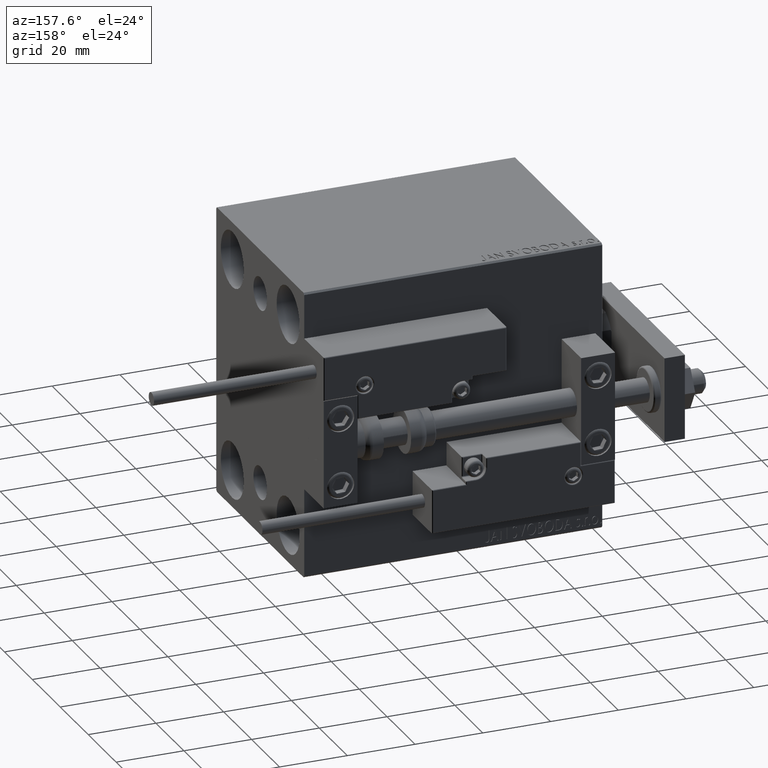
[diagram: clean part render]
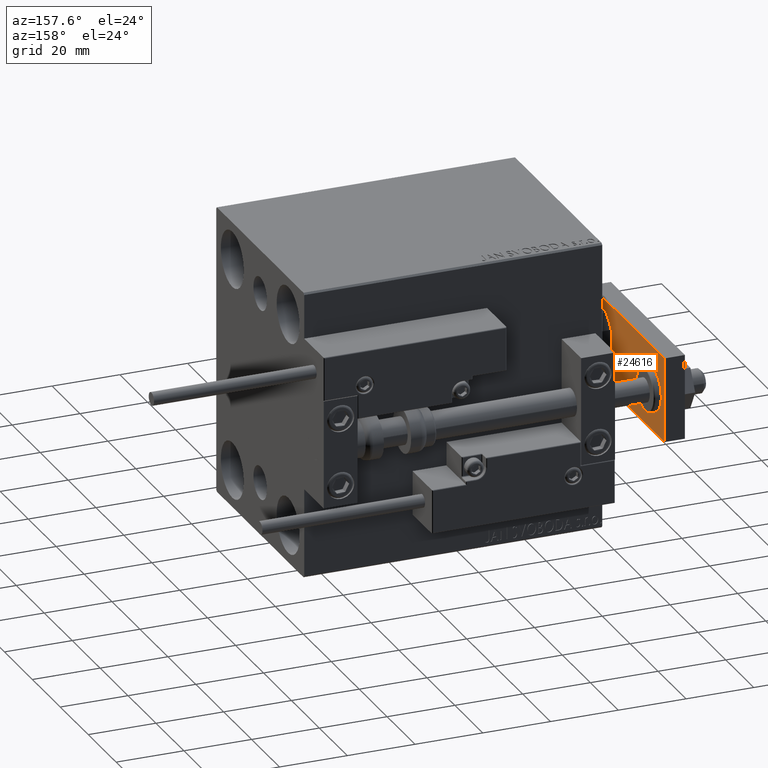
[diagram: same view with one face highlighted and labeled with its STEP entity id]
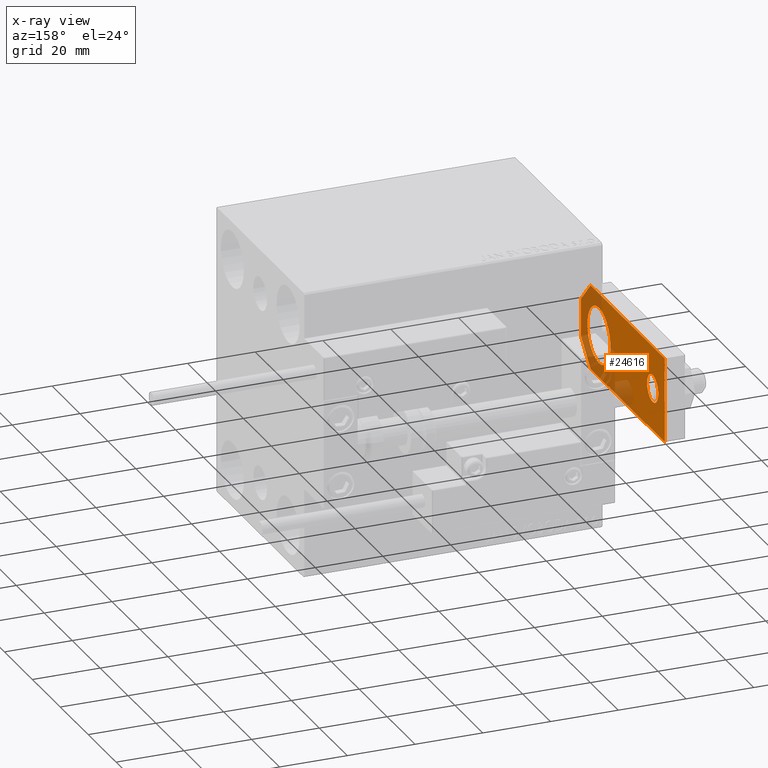
[diagram: x-ray of the same camera — body ghosted, the highlighted face saturated]
A machine part, auxiliary view. The second image highlights one B-rep face of the part: STEP entity #24616.
The next image is the same camera in x-ray: the body ghosted, the highlighted face saturated — about 29% of this face is hidden behind the body in this view.
In plain terms, the highlighted planar face has unit normal (-1, 0, 0).
Its self-contained STEP definition (entity closure, byte-faithful):
#76 = CARTESIAN_POINT ( 'NONE',  ( 12.50000000000000355, 60.00000000000000000, 0.000000000000000000 ) ) ;
#257 = EDGE_LOOP ( 'NONE', ( #16650, #29109 ) ) ;
#455 = DIRECTION ( 'NONE',  ( 1.000000000000000000, 0.000000000000000000, 0.000000000000000000 ) ) ;
#927 = DIRECTION ( 'NONE',  ( -0.7071067811865465735, 0.7071067811865485719, -0.000000000000000000 ) ) ;
#1208 = FACE_OUTER_BOUND ( 'NONE', #18772, .T. ) ;
#1273 = VERTEX_POINT ( 'NONE', #16769 ) ;
#1438 = CARTESIAN_POINT ( 'NONE',  ( -12.49999999999999822, 60.00000000000000000, 0.000000000000000000 ) ) ;
#2416 = VERTEX_POINT ( 'NONE', #12184 ) ;
#2579 = ORIENTED_EDGE ( 'NONE', *, *, #46075, .F. ) ;
#2610 = LINE ( 'NONE', #37791, #17291 ) ;
#2993 = CARTESIAN_POINT ( 'NONE',  ( -12.50000000000000355, 7.000000000000013323, 0.000000000000000000 ) ) ;
#3582 = EDGE_CURVE ( 'NONE', #30426, #26412, #40472, .T. ) ;
#3798 = CARTESIAN_POINT ( 'NONE',  ( 8.250000000000000000, 13.00000000000000000, 0.000000000000000000 ) ) ;
#5816 = ORIENTED_EDGE ( 'NONE', *, *, #48107, .F. ) ;
#6535 = DIRECTION ( 'NONE',  ( -0.7071067811865486830, -0.7071067811865464625, -0.000000000000000000 ) ) ;
#6827 = AXIS2_PLACEMENT_3D ( 'NONE', #25024, #43983, #16653 ) ;
#6858 = AXIS2_PLACEMENT_3D ( 'NONE', #8102, #23548, #39484 ) ;
#7784 = DIRECTION ( 'NONE',  ( -1.000000000000000000, 0.000000000000000000, 0.000000000000000000 ) ) ;
#8102 = CARTESIAN_POINT ( 'NONE',  ( -1.432611055310774642E-16, 51.50000000000000000, 0.000000000000000000 ) ) ;
#8280 = LINE ( 'NONE', #12320, #23774 ) ;
#8633 = DIRECTION ( 'NONE',  ( 1.000000000000000000, 0.000000000000000000, 0.000000000000000000 ) ) ;
#9507 = VERTEX_POINT ( 'NONE', #3798 ) ;
#9515 = ORIENTED_EDGE ( 'NONE', *, *, #26180, .F. ) ;
#9586 = CARTESIAN_POINT ( 'NONE',  ( 12.50000000000000355, 7.000000000000006217, 0.000000000000000000 ) ) ;
#10103 = ORIENTED_EDGE ( 'NONE', *, *, #46718, .T. ) ;
#11088 = LINE ( 'NONE', #42223, #49913 ) ;
#12184 = CARTESIAN_POINT ( 'NONE',  ( -5.500000000000010658, 4.814824860968089633E-32, 0.000000000000000000 ) ) ;
#12306 = VERTEX_POINT ( 'NONE', #46501 ) ;
#12320 = CARTESIAN_POINT ( 'NONE',  ( -5.500000000000010658, 4.814824860968089633E-32, 0.000000000000000000 ) ) ;
#13541 = CIRCLE ( 'NONE', #17547, 8.250000000000000000 ) ;
#14339 = CIRCLE ( 'NONE', #17581, 4.000000000000000888 ) ;
#14388 = DIRECTION ( 'NONE',  ( 1.000000000000000000, 0.000000000000000000, 0.000000000000000000 ) ) ;
#14700 = CARTESIAN_POINT ( 'NONE',  ( 5.499999999999976907, 4.814824860968089633E-32, 0.000000000000000000 ) ) ;
#15833 = VERTEX_POINT ( 'NONE', #76 ) ;
#15855 = CARTESIAN_POINT ( 'NONE',  ( -4.000000000000000888, 51.50000000000000000, 0.000000000000000000 ) ) ;
#16223 = DIRECTION ( 'NONE',  ( 0.000000000000000000, 0.000000000000000000, 1.000000000000000000 ) ) ;
#16650 = ORIENTED_EDGE ( 'NONE', *, *, #28523, .T. ) ;
#16653 = DIRECTION ( 'NONE',  ( 1.000000000000000000, 0.000000000000000000, 0.000000000000000000 ) ) ;
#16769 = CARTESIAN_POINT ( 'NONE',  ( -12.49999999999999822, 60.00000000000000000, 0.000000000000000000 ) ) ;
#16876 = DIRECTION ( 'NONE',  ( -8.673617379884035472E-17, -1.000000000000000000, 0.000000000000000000 ) ) ;
#17291 = VECTOR ( 'NONE', #29705, 1000.000000000000000 ) ;
#17547 = AXIS2_PLACEMENT_3D ( 'NONE', #19696, #35147, #455 ) ;
#17581 = AXIS2_PLACEMENT_3D ( 'NONE', #47860, #16223, #8633 ) ;
#18681 = CARTESIAN_POINT ( 'NONE',  ( 12.50000000000000355, 60.00000000000000000, 0.000000000000000000 ) ) ;
#18772 = EDGE_LOOP ( 'NONE', ( #2579, #24145, #5816, #27014, #9515, #37457 ) ) ;
#19696 = CARTESIAN_POINT ( 'NONE',  ( -9.629649721936179265E-32, 12.99999999999999822, 0.000000000000000000 ) ) ;
#21212 = PLANE ( 'NONE',  #6827 ) ;
#21532 = AXIS2_PLACEMENT_3D ( 'NONE', #43746, #24523, #39951 ) ;
#23449 = CARTESIAN_POINT ( 'NONE',  ( -8.250000000000000000, 12.99999999999999822, 0.000000000000000000 ) ) ;
#23548 = DIRECTION ( 'NONE',  ( 0.000000000000000000, 0.000000000000000000, 1.000000000000000000 ) ) ;
#23568 = CARTESIAN_POINT ( 'NONE',  ( 12.50000000000000355, 7.000000000000006217, 0.000000000000000000 ) ) ;
#23774 = VECTOR ( 'NONE', #927, 1000.000000000000000 ) ;
#24145 = ORIENTED_EDGE ( 'NONE', *, *, #26687, .T. ) ;
#24523 = DIRECTION ( 'NONE',  ( 0.000000000000000000, 0.000000000000000000, 1.000000000000000000 ) ) ;
#24616 = ADVANCED_FACE ( 'NONE', ( #1208, #48303, #36900 ), #21212, .F. ) ;
#25024 = CARTESIAN_POINT ( 'NONE',  ( 0.000000000000000000, 0.000000000000000000, 0.000000000000000000 ) ) ;
#26180 = EDGE_CURVE ( 'NONE', #30426, #15833, #2610, .T. ) ;
#26412 = VERTEX_POINT ( 'NONE', #14700 ) ;
#26687 = EDGE_CURVE ( 'NONE', #2416, #47293, #8280, .T. ) ;
#26850 = EDGE_LOOP ( 'NONE', ( #32305, #10103 ) ) ;
#27014 = ORIENTED_EDGE ( 'NONE', *, *, #38119, .F. ) ;
#28523 = EDGE_CURVE ( 'NONE', #44983, #12306, #43234, .T. ) ;
#29109 = ORIENTED_EDGE ( 'NONE', *, *, #43530, .T. ) ;
#29705 = DIRECTION ( 'NONE',  ( 0.000000000000000000, 1.000000000000000000, 0.000000000000000000 ) ) ;
#30426 = VERTEX_POINT ( 'NONE', #23568 ) ;
#31433 = VECTOR ( 'NONE', #7784, 1000.000000000000000 ) ;
#31473 = EDGE_CURVE ( 'NONE', #42927, #9507, #36051, .T. ) ;
#32305 = ORIENTED_EDGE ( 'NONE', *, *, #31473, .T. ) ;
#34130 = LINE ( 'NONE', #18681, #31433 ) ;
#35147 = DIRECTION ( 'NONE',  ( 0.000000000000000000, 0.000000000000000000, 1.000000000000000000 ) ) ;
#36051 = CIRCLE ( 'NONE', #21532, 8.250000000000000000 ) ;
#36187 = VECTOR ( 'NONE', #16876, 1000.000000000000000 ) ;
#36900 = FACE_BOUND ( 'NONE', #26850, .T. ) ;
#37457 = ORIENTED_EDGE ( 'NONE', *, *, #3582, .T. ) ;
#37791 = CARTESIAN_POINT ( 'NONE',  ( 12.50000000000000355, 4.814824860968089633E-32, 0.000000000000000000 ) ) ;
#38119 = EDGE_CURVE ( 'NONE', #15833, #1273, #34130, .T. ) ;
#39484 = DIRECTION ( 'NONE',  ( 1.000000000000000000, 0.000000000000000000, 0.000000000000000000 ) ) ;
#39911 = LINE ( 'NONE', #1438, #36187 ) ;
#39951 = DIRECTION ( 'NONE',  ( 1.000000000000000000, 0.000000000000000000, 0.000000000000000000 ) ) ;
#40472 = LINE ( 'NONE', #9586, #48114 ) ;
#42223 = CARTESIAN_POINT ( 'NONE',  ( -12.50000000000000355, 4.814824860968089633E-32, 0.000000000000000000 ) ) ;
#42927 = VERTEX_POINT ( 'NONE', #23449 ) ;
#43234 = CIRCLE ( 'NONE', #6858, 4.000000000000000888 ) ;
#43530 = EDGE_CURVE ( 'NONE', #12306, #44983, #14339, .T. ) ;
#43746 = CARTESIAN_POINT ( 'NONE',  ( -9.629649721936179265E-32, 12.99999999999999822, 0.000000000000000000 ) ) ;
#43983 = DIRECTION ( 'NONE',  ( -0.000000000000000000, 0.000000000000000000, 1.000000000000000000 ) ) ;
#44983 = VERTEX_POINT ( 'NONE', #15855 ) ;
#46075 = EDGE_CURVE ( 'NONE', #2416, #26412, #11088, .T. ) ;
#46501 = CARTESIAN_POINT ( 'NONE',  ( 4.000000000000000888, 51.50000000000000000, 0.000000000000000000 ) ) ;
#46718 = EDGE_CURVE ( 'NONE', #9507, #42927, #13541, .T. ) ;
#47293 = VERTEX_POINT ( 'NONE', #2993 ) ;
#47860 = CARTESIAN_POINT ( 'NONE',  ( -1.432611055310774642E-16, 51.50000000000000000, 0.000000000000000000 ) ) ;
#48107 = EDGE_CURVE ( 'NONE', #1273, #47293, #39911, .T. ) ;
#48114 = VECTOR ( 'NONE', #6535, 999.9999999999998863 ) ;
#48303 = FACE_BOUND ( 'NONE', #257, .T. ) ;
#49913 = VECTOR ( 'NONE', #14388, 1000.000000000000000 ) ;